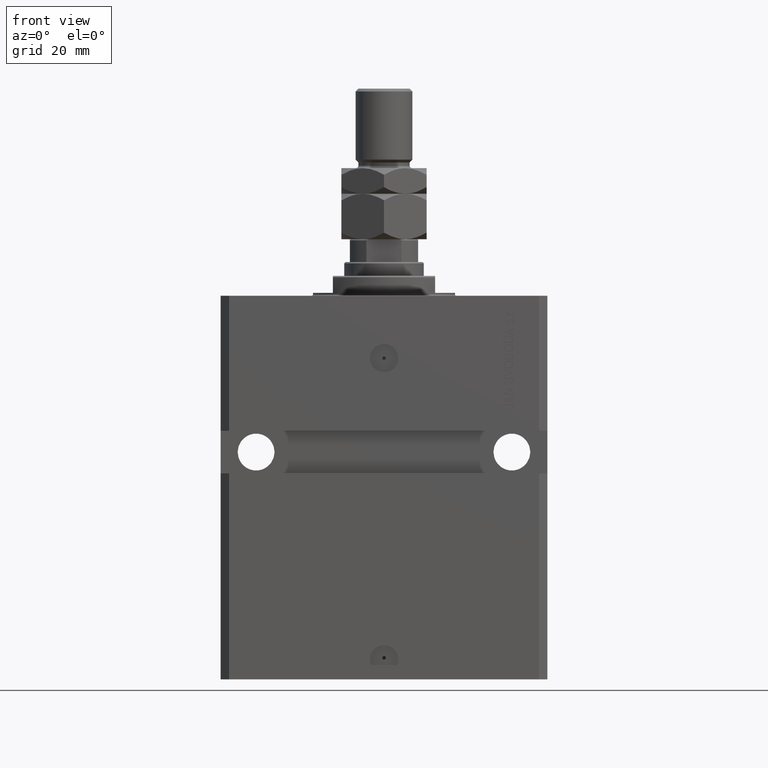
[diagram: clean part render]
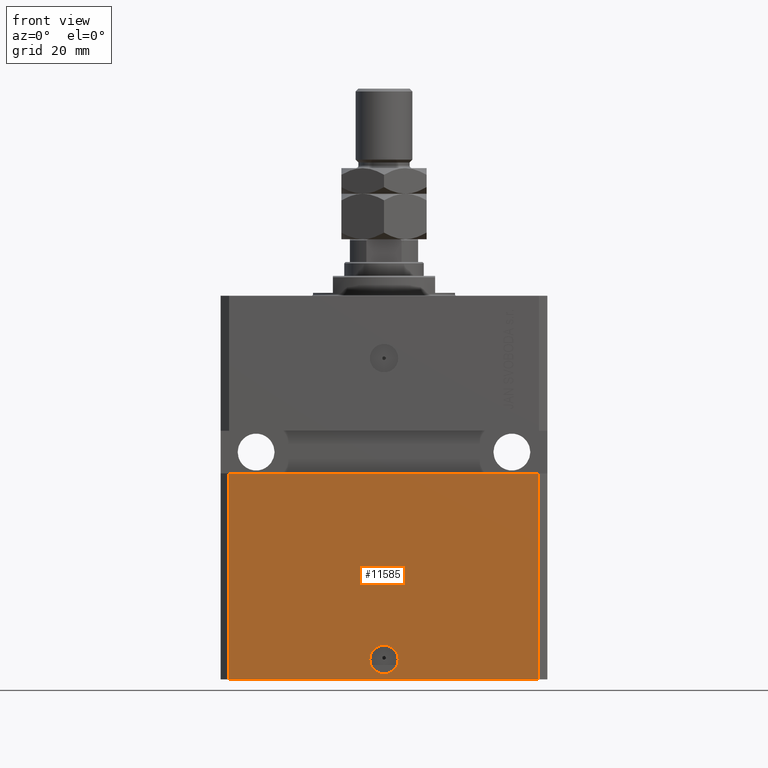
[diagram: same view with one face highlighted and labeled with its STEP entity id]
A machine part, front view. The second image highlights one B-rep face of the part: STEP entity #11585.
In plain terms, the highlighted planar face has unit normal (0, -1, 0).
Its self-contained STEP definition (entity closure, byte-faithful):
#164 = DIRECTION ( 'NONE',  ( 1.176083712526788232E-16, -1.000000000000000000, 0.000000000000000000 ) ) ;
#399 = DIRECTION ( 'NONE',  ( 1.000000000000000000, 0.000000000000000000, 0.000000000000000000 ) ) ;
#2399 = ORIENTED_EDGE ( 'NONE', *, *, #41808, .F. ) ;
#2461 = PLANE ( 'NONE',  #7034 ) ;
#2765 = ORIENTED_EDGE ( 'NONE', *, *, #22809, .T. ) ;
#3055 = VECTOR ( 'NONE', #33684, 1000.000000000000000 ) ;
#3071 = CARTESIAN_POINT ( 'NONE',  ( -5.000000000000000000, -44.99999999999999289, -128.0000000000000000 ) ) ;
#4631 = LINE ( 'NONE', #21885, #14569 ) ;
#4679 = VECTOR ( 'NONE', #40714, 1000.000000000000000 ) ;
#6767 = VERTEX_POINT ( 'NONE', #47800 ) ;
#6800 = LINE ( 'NONE', #17443, #3055 ) ;
#7034 = AXIS2_PLACEMENT_3D ( 'NONE', #14383, #26552, #34181 ) ;
#8822 = CARTESIAN_POINT ( 'NONE',  ( 54.50000000000000711, -44.99999999999998579, -135.0000000000000000 ) ) ;
#9077 = VERTEX_POINT ( 'NONE', #47461 ) ;
#11585 = ADVANCED_FACE ( 'NONE', ( #14134, #49967 ), #2461, .T. ) ;
#13510 = DIRECTION ( 'NONE',  ( 1.000000000000000000, 1.206764157201257045E-16, 6.033820786006285224E-17 ) ) ;
#13541 = VERTEX_POINT ( 'NONE', #8822 ) ;
#13688 = EDGE_CURVE ( 'NONE', #6767, #13541, #6800, .T. ) ;
#14134 = FACE_BOUND ( 'NONE', #37019, .T. ) ;
#14383 = CARTESIAN_POINT ( 'NONE',  ( -54.50000000000000711, -45.00000000000000000, -135.0000000000000000 ) ) ;
#14569 = VECTOR ( 'NONE', #21109, 1000.000000000000000 ) ;
#16336 = CARTESIAN_POINT ( 'NONE',  ( -54.50000000000000711, -45.00000000000000000, -62.50000000000000000 ) ) ;
#17443 = CARTESIAN_POINT ( 'NONE',  ( -54.50000000000000711, -45.00000000000000000, -135.0000000000000000 ) ) ;
#18543 = CIRCLE ( 'NONE', #38007, 5.000000000000006217 ) ;
#19230 = EDGE_CURVE ( 'NONE', #43420, #42208, #33059, .T. ) ;
#19292 = DIRECTION ( 'NONE',  ( 1.176083712526788232E-16, -1.000000000000000000, 0.000000000000000000 ) ) ;
#19459 = CARTESIAN_POINT ( 'NONE',  ( 5.000000000000012434, -44.99999999999999289, -128.0000000000000000 ) ) ;
#20322 = EDGE_LOOP ( 'NONE', ( #29048, #2399, #48251, #2765 ) ) ;
#20614 = LINE ( 'NONE', #39415, #21752 ) ;
#21109 = DIRECTION ( 'NONE',  ( 0.000000000000000000, 0.000000000000000000, 1.000000000000000000 ) ) ;
#21752 = VECTOR ( 'NONE', #13510, 1000.000000000000000 ) ;
#21885 = CARTESIAN_POINT ( 'NONE',  ( 54.50000000000000711, -44.99999999999998579, -135.0000000000000000 ) ) ;
#22809 = EDGE_CURVE ( 'NONE', #13541, #9077, #4631, .T. ) ;
#26552 = DIRECTION ( 'NONE',  ( 1.273191542001326317E-16, -1.000000000000000000, 0.000000000000000000 ) ) ;
#29048 = ORIENTED_EDGE ( 'NONE', *, *, #42609, .F. ) ;
#30333 = ORIENTED_EDGE ( 'NONE', *, *, #47592, .F. ) ;
#31447 = CARTESIAN_POINT ( 'NONE',  ( 5.729361939005967538E-15, -44.99999999999999289, -128.0000000000000000 ) ) ;
#33059 = CIRCLE ( 'NONE', #34691, 5.000000000000006217 ) ;
#33327 = LINE ( 'NONE', #48607, #4679 ) ;
#33684 = DIRECTION ( 'NONE',  ( 1.000000000000000000, 1.273191542001326317E-16, 0.000000000000000000 ) ) ;
#34181 = DIRECTION ( 'NONE',  ( 1.000000000000000000, 1.273191542001326317E-16, 0.000000000000000000 ) ) ;
#34691 = AXIS2_PLACEMENT_3D ( 'NONE', #31447, #19292, #34771 ) ;
#34771 = DIRECTION ( 'NONE',  ( 1.000000000000000000, 0.000000000000000000, 0.000000000000000000 ) ) ;
#35023 = ORIENTED_EDGE ( 'NONE', *, *, #19230, .F. ) ;
#37019 = EDGE_LOOP ( 'NONE', ( #35023, #30333 ) ) ;
#37534 = VERTEX_POINT ( 'NONE', #16336 ) ;
#38007 = AXIS2_PLACEMENT_3D ( 'NONE', #39479, #164, #399 ) ;
#39415 = CARTESIAN_POINT ( 'NONE',  ( -57.50000000000000711, -45.00000000000000000, -62.50000000000000000 ) ) ;
#39479 = CARTESIAN_POINT ( 'NONE',  ( 5.729361939005967538E-15, -44.99999999999999289, -128.0000000000000000 ) ) ;
#40714 = DIRECTION ( 'NONE',  ( 0.000000000000000000, 0.000000000000000000, 1.000000000000000000 ) ) ;
#41808 = EDGE_CURVE ( 'NONE', #6767, #37534, #33327, .T. ) ;
#42208 = VERTEX_POINT ( 'NONE', #3071 ) ;
#42609 = EDGE_CURVE ( 'NONE', #37534, #9077, #20614, .T. ) ;
#43420 = VERTEX_POINT ( 'NONE', #19459 ) ;
#47461 = CARTESIAN_POINT ( 'NONE',  ( 54.49999999999997868, -44.99999999999998579, -62.49999999999999289 ) ) ;
#47592 = EDGE_CURVE ( 'NONE', #42208, #43420, #18543, .T. ) ;
#47800 = CARTESIAN_POINT ( 'NONE',  ( -54.50000000000000711, -45.00000000000000000, -135.0000000000000000 ) ) ;
#48251 = ORIENTED_EDGE ( 'NONE', *, *, #13688, .T. ) ;
#48607 = CARTESIAN_POINT ( 'NONE',  ( -54.50000000000000711, -45.00000000000000000, -135.0000000000000000 ) ) ;
#49967 = FACE_OUTER_BOUND ( 'NONE', #20322, .T. ) ;